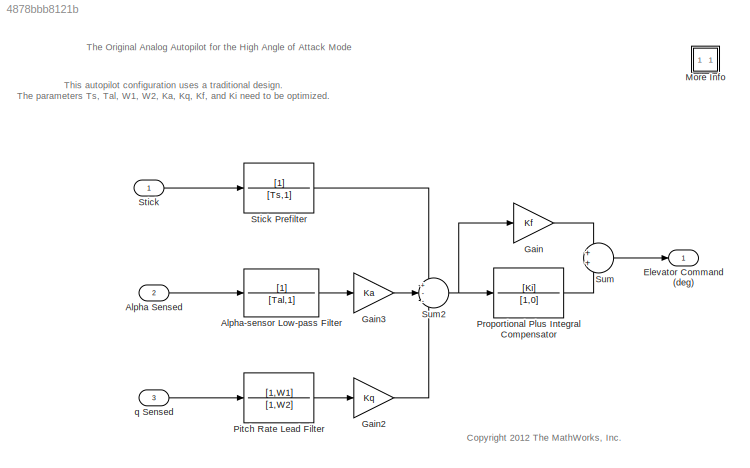
MODEL slx_4878bbb8121b
KIND model
CONFIG AbsTol = 1e-6
CONFIG EnableMultiTasking = off
CONFIG FixedStep = auto
CONFIG MaxStep = auto
CONFIG MinStep = auto
CONFIG PreLoadFcn = load slexAircraftPitchControlData.mat
CONFIG RelTol = 1e-3
CONFIG SampleTimeConstraint = Unconstrained
CONFIG SolverName = ode45
CONFIG StartTime = 0.0
CONFIG StopTime = 10.0
BLOCK [Inport] Alpha Sensed
  Port = 2
  PortDimensions = 1
BLOCK [TransferFcn] Alpha-sensor Low-pass Filter
  Denominator = [Tal,1]
BLOCK [Outport] Elevator Command (deg)
  InitialOutput = 0
  VectorParamsAs1DForOutWhenUnconnected = off
BLOCK [Gain] Gain
  Gain = Kf
  OutDataTypeStr = Inherit: Same as input
  ParamDataTypeStr = Inherit: Same as input
  SaturateOnIntegerOverflow = on
BLOCK [Gain] Gain2
  Gain = Kq
  NameLocation = top
  OutDataTypeStr = Inherit: Same as input
  ParamDataTypeStr = Inherit: Same as input
  SaturateOnIntegerOverflow = on
BLOCK [Gain] Gain3
  Gain = Ka
  NameLocation = top
  OutDataTypeStr = Inherit: Same as input
  ParamDataTypeStr = Inherit: Same as input
  SaturateOnIntegerOverflow = on
BLOCK [SubSystem] More Info
  OpenFcn = showExample('simulink_aerospace/DesigningAHighAngleOfAttackPitchModeControlExample')
  Ports = []
  RequestExecContextInheritance = off
BLOCK [TransferFcn] Pitch Rate Lead Filter
  Denominator = [1,W2]
  Numerator = [1,W1]
BLOCK [TransferFcn] Proportional Plus Integral Compensator
  Denominator = [1,0]
  Numerator = [Ki]
BLOCK [Inport] Stick
  PortDimensions = 1
BLOCK [TransferFcn] Stick Prefilter
  Denominator = [Ts,1]
BLOCK [Sum] Sum
  InputSameDT = on
  Inputs = 2
  OutDataTypeStr = Inherit: Same as first input
  Ports = [2, 1]
  SaturateOnIntegerOverflow = on
BLOCK [Sum] Sum2
  InputSameDT = on
  Inputs = +--
  OutDataTypeStr = Inherit: Same as first input
  Ports = [3, 1]
  SaturateOnIntegerOverflow = on
BLOCK [Inport] q Sensed
  Port = 3
  PortDimensions = 1
ANNOTATION (root): <copyright redacted>
ANNOTATION (root): The Original Analog Autopilot for the High Angle of Attack Mode
ANNOTATION (root): This autopilot configuration uses a traditional design. The parameters Ts, Tal, W1, W2, Ka, Kq, Kf, and Ki need to be optimized.
LINE Alpha Sensed:1 -> Alpha-sensor Low-pass Filter:1
LINE Alpha-sensor Low-pass Filter:1 -> Gain3:1
LINE Gain2:1 -> Sum2:3
LINE Gain3:1 -> Sum2:2
LINE Gain:1 -> Sum:1
LINE Pitch Rate Lead Filter:1 -> Gain2:1
LINE Proportional Plus Integral Compensator:1 -> Sum:2
LINE Stick Prefilter:1 -> Sum2:1
LINE Stick:1 -> Stick Prefilter:1
NET Sum2:1 -> Gain:1, Proportional Plus Integral Compensator:1
LINE Sum:1 -> Elevator Command (deg):1
LINE q Sensed:1 -> Pitch Rate Lead Filter:1
note: NET lines group one-source signal fan-out (src -> all destinations, sorted); 1:1 wires keep LINE
